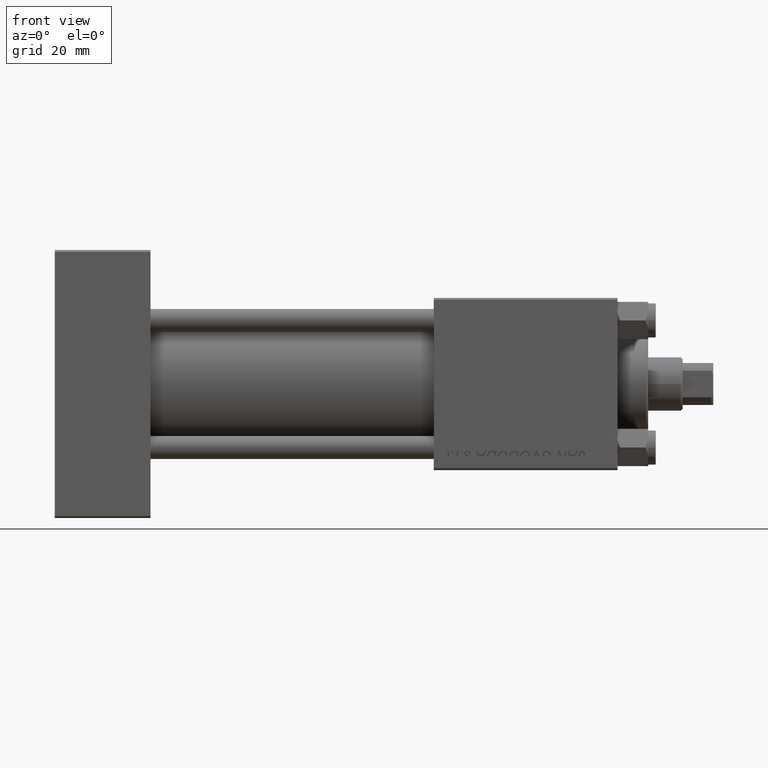
[diagram: clean part render]
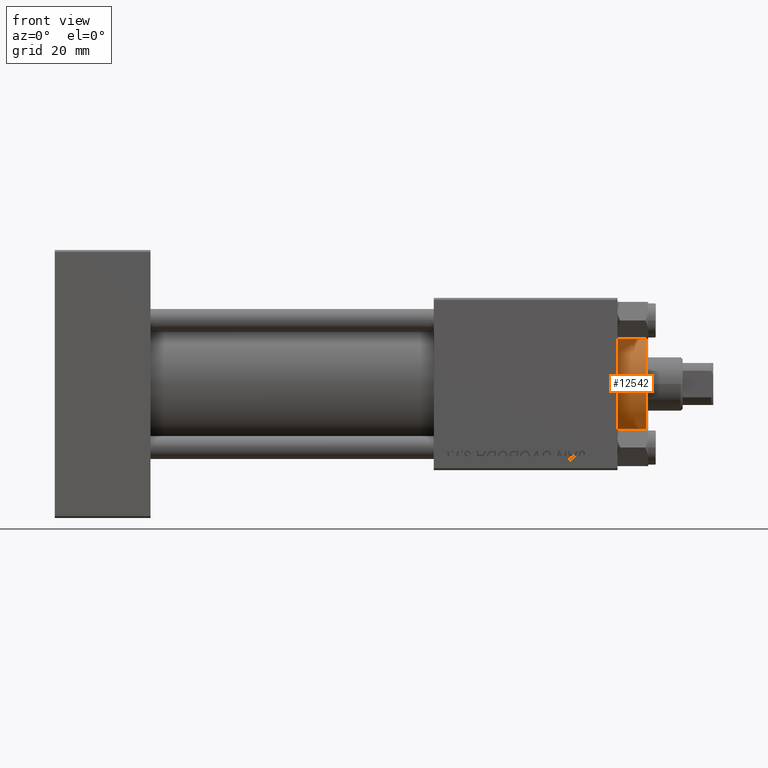
[diagram: same view with one face highlighted and labeled with its STEP entity id]
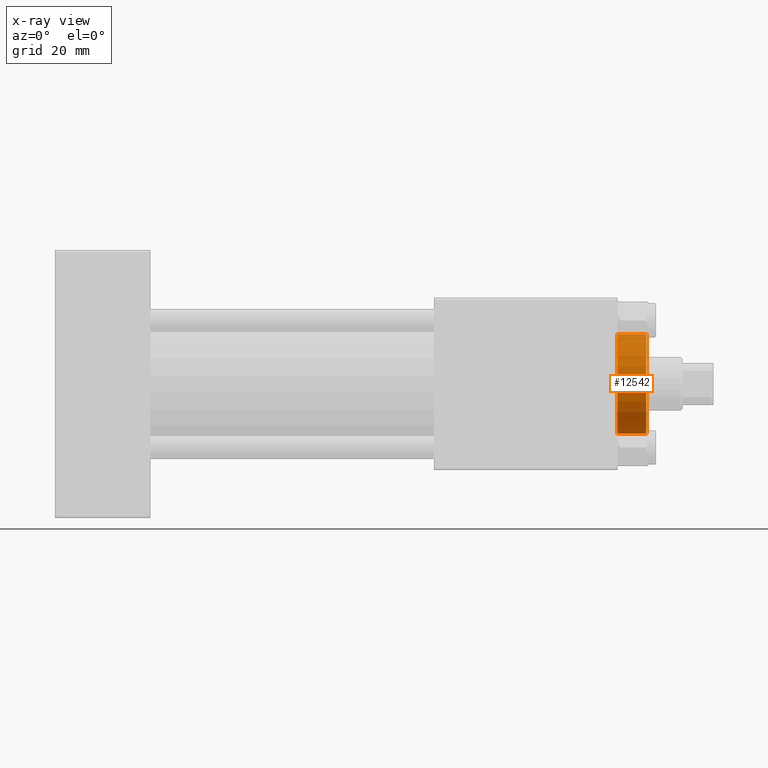
[diagram: x-ray of the same camera — body ghosted, the highlighted face saturated]
A machine part, front view. The second image highlights one B-rep face of the part: STEP entity #12542.
The next image is the same camera in x-ray: the body ghosted, the highlighted face saturated — about 0% of this face is hidden behind the body in this view.
In plain terms, the highlighted cylindrical surface (partial cylindrical patch) has radius 13 mm, axis along (-1, -0, 0).
Its self-contained STEP definition (entity closure, byte-faithful):
#263 = ORIENTED_EDGE ( 'NONE', *, *, #24998, .T. ) ;
#5030 = CARTESIAN_POINT ( 'NONE',  ( -13.00000000000000178, 0.000000000000000000, 28.69999999999999929 ) ) ;
#5467 = VECTOR ( 'NONE', #12994, 1000.000000000000000 ) ;
#7155 = CARTESIAN_POINT ( 'NONE',  ( -13.00000000000000178, 0.000000000000000000, 36.20000000000000995 ) ) ;
#8222 = AXIS2_PLACEMENT_3D ( 'NONE', #18892, #11298, #21944 ) ;
#8290 = VERTEX_POINT ( 'NONE', #14232 ) ;
#10210 = CARTESIAN_POINT ( 'NONE',  ( 13.00000000000000178, 1.592040838891559293E-15, 36.69999999999999574 ) ) ;
#11157 = VERTEX_POINT ( 'NONE', #5030 ) ;
#11298 = DIRECTION ( 'NONE',  ( 0.000000000000000000, 0.000000000000000000, 1.000000000000000000 ) ) ;
#11860 = DIRECTION ( 'NONE',  ( -0.000000000000000000, -0.000000000000000000, -1.000000000000000000 ) ) ;
#12542 = ADVANCED_FACE ( 'NONE', ( #28960 ), #31066, .T. ) ;
#12758 = CARTESIAN_POINT ( 'NONE',  ( -13.00000000000000178, 0.000000000000000000, 36.69999999999999574 ) ) ;
#12994 = DIRECTION ( 'NONE',  ( -0.000000000000000000, -0.000000000000000000, -1.000000000000000000 ) ) ;
#14232 = CARTESIAN_POINT ( 'NONE',  ( 13.00000000000000178, 1.592040838891559293E-15, 28.69999999999999929 ) ) ;
#15215 = DIRECTION ( 'NONE',  ( 1.000000000000000000, 0.000000000000000000, 0.000000000000000000 ) ) ;
#18892 = CARTESIAN_POINT ( 'NONE',  ( 0.000000000000000000, 0.000000000000000000, 28.69999999999999929 ) ) ;
#21048 = VERTEX_POINT ( 'NONE', #7155 ) ;
#21944 = DIRECTION ( 'NONE',  ( 1.000000000000000000, 0.000000000000000000, 0.000000000000000000 ) ) ;
#22107 = LINE ( 'NONE', #10210, #40534 ) ;
#23443 = CARTESIAN_POINT ( 'NONE',  ( 13.00000000000000178, 1.592040838891559293E-15, 36.20000000000000995 ) ) ;
#23751 = CARTESIAN_POINT ( 'NONE',  ( 0.000000000000000000, 0.000000000000000000, 36.69999999999999574 ) ) ;
#24003 = ORIENTED_EDGE ( 'NONE', *, *, #47881, .T. ) ;
#24045 = CIRCLE ( 'NONE', #40984, 13.00000000000000178 ) ;
#24998 = EDGE_CURVE ( 'NONE', #11157, #8290, #29238, .T. ) ;
#26118 = EDGE_CURVE ( 'NONE', #33860, #8290, #22107, .T. ) ;
#26267 = AXIS2_PLACEMENT_3D ( 'NONE', #23751, #11860, #27534 ) ;
#27534 = DIRECTION ( 'NONE',  ( -1.000000000000000000, 0.000000000000000000, 0.000000000000000000 ) ) ;
#28960 = FACE_OUTER_BOUND ( 'NONE', #33675, .T. ) ;
#29188 = DIRECTION ( 'NONE',  ( -0.000000000000000000, -0.000000000000000000, -1.000000000000000000 ) ) ;
#29238 = CIRCLE ( 'NONE', #8222, 13.00000000000000178 ) ;
#29648 = CARTESIAN_POINT ( 'NONE',  ( 0.000000000000000000, 0.000000000000000000, 36.20000000000000995 ) ) ;
#31066 = CYLINDRICAL_SURFACE ( 'NONE', #26267, 13.00000000000000178 ) ;
#33675 = EDGE_LOOP ( 'NONE', ( #47122, #47198, #24003, #263 ) ) ;
#33860 = VERTEX_POINT ( 'NONE', #23443 ) ;
#35519 = LINE ( 'NONE', #12758, #5467 ) ;
#40534 = VECTOR ( 'NONE', #29188, 1000.000000000000000 ) ;
#40984 = AXIS2_PLACEMENT_3D ( 'NONE', #29648, #41745, #15215 ) ;
#41745 = DIRECTION ( 'NONE',  ( 0.000000000000000000, 0.000000000000000000, -1.000000000000000000 ) ) ;
#42502 = EDGE_CURVE ( 'NONE', #33860, #21048, #24045, .T. ) ;
#47122 = ORIENTED_EDGE ( 'NONE', *, *, #26118, .F. ) ;
#47198 = ORIENTED_EDGE ( 'NONE', *, *, #42502, .T. ) ;
#47881 = EDGE_CURVE ( 'NONE', #21048, #11157, #35519, .T. ) ;